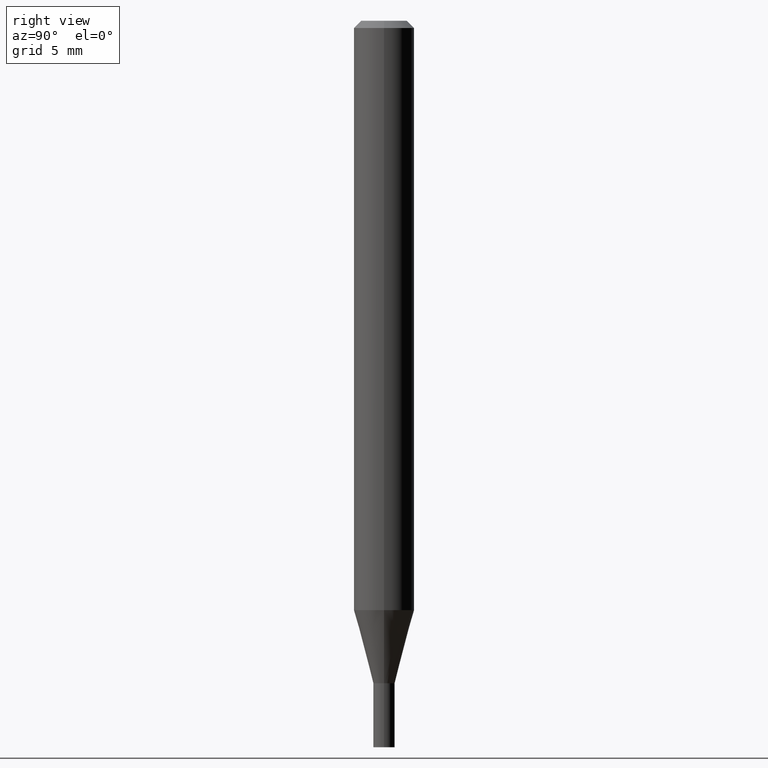
[diagram: clean part render]
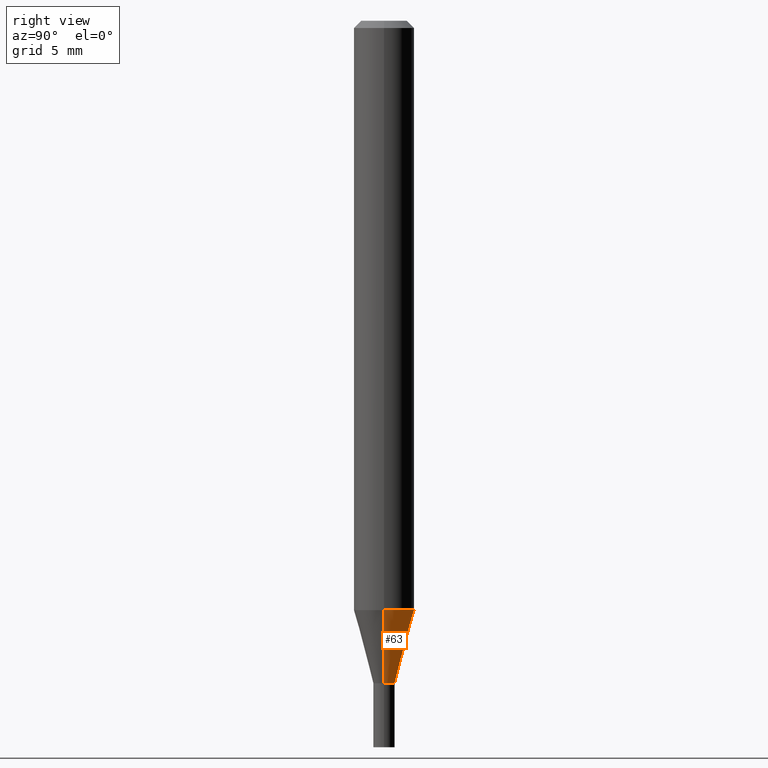
[diagram: same view with one face highlighted and labeled with its STEP entity id]
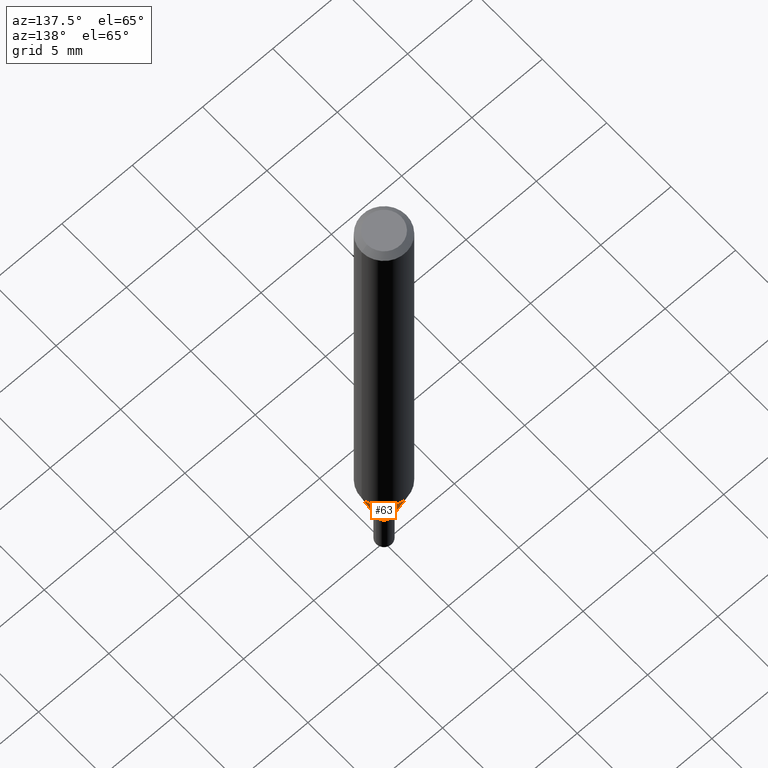
[diagram: same view with one face highlighted and labeled with its STEP entity id]
A machine part, right view. The second image highlights one B-rep face of the part: STEP entity #63.
A second angle (auxiliary view) of the same face is appended — the face is thin or edge-on in the first view.
In plain terms, the highlighted conical surface has half-angle 15 deg.
Its self-contained STEP definition (entity closure, byte-faithful):
#7 = DIRECTION ( 'NONE',  ( -2.445468806185136597E-29, 3.491481338843145583E-15, 1.000000000000000000 ) ) ;
#14 = VERTEX_POINT ( 'NONE', #279 ) ;
#34 = VERTEX_POINT ( 'NONE', #127 ) ;
#41 = AXIS2_PLACEMENT_3D ( 'NONE', #372, #47, #416 ) ;
#43 = CARTESIAN_POINT ( 'NONE',  ( 3.345401326861266963E-29, -4.776346471537423880E-15, -1.368000000000000105 ) ) ;
#47 = DIRECTION ( 'NONE',  ( -2.445468806185136597E-29, 3.491481338843145583E-15, 1.000000000000000000 ) ) ;
#50 = ORIENTED_EDGE ( 'NONE', *, *, #415, .F. ) ;
#63 = ADVANCED_FACE ( 'NONE', ( #384 ), #289, .T. ) ;
#64 = CARTESIAN_POINT ( 'NONE',  ( 3.345401326861266963E-29, -4.776346471537423880E-15, -1.368000000000000105 ) ) ;
#67 = DIRECTION ( 'NONE',  ( 1.000000000000000000, -6.982962677686268288E-15, 0.000000000000000000 ) ) ;
#77 = CARTESIAN_POINT ( 'NONE',  ( -0.02199999999999964831, -4.212276854236394930E-15, -1.368000000000000105 ) ) ;
#83 = CARTESIAN_POINT ( 'NONE',  ( -0.02199999999999964831, -4.620027069670204066E-15, -1.368000000000000105 ) ) ;
#87 = DIRECTION ( 'NONE',  ( 0.2588190451025207395, 1.565188264969626109E-15, 0.9659258262890682012 ) ) ;
#127 = CARTESIAN_POINT ( 'NONE',  ( -0.06249999999999999306, -3.804526638802586582E-15, -1.216851942293459166 ) ) ;
#134 = CIRCLE ( 'NONE', #286, 0.02199999999999964831 ) ;
#149 = ORIENTED_EDGE ( 'NONE', *, *, #357, .T. ) ;
#174 = EDGE_LOOP ( 'NONE', ( #149, #180, #50, #414 ) ) ;
#180 = ORIENTED_EDGE ( 'NONE', *, *, #259, .T. ) ;
#227 = VERTEX_POINT ( 'NONE', #239 ) ;
#232 = DIRECTION ( 'NONE',  ( -0.2588190451025207395, 5.211531920934546309E-15, 0.9659258262890682012 ) ) ;
#239 = CARTESIAN_POINT ( 'NONE',  ( 0.06249999999999999306, -4.685051016008040868E-15, -1.216851942293459166 ) ) ;
#248 = EDGE_CURVE ( 'NONE', #14, #227, #410, .T. ) ;
#250 = DIRECTION ( 'NONE',  ( -2.445468806185136597E-29, 3.491481338843145583E-15, 1.000000000000000000 ) ) ;
#259 = EDGE_CURVE ( 'NONE', #447, #34, #367, .T. ) ;
#266 = DIRECTION ( 'NONE',  ( 1.000000000000000000, -6.982962677686268288E-15, 0.000000000000000000 ) ) ;
#279 = CARTESIAN_POINT ( 'NONE',  ( 0.02199999999999964831, -4.929971650446518560E-15, -1.368000000000000105 ) ) ;
#286 = AXIS2_PLACEMENT_3D ( 'NONE', #43, #7, #266 ) ;
#289 = CONICAL_SURFACE ( 'NONE', #409, 0.02199999999999964831, 0.2617993877991494633 ) ;
#324 = VECTOR ( 'NONE', #87, 39.37007874015748854 ) ;
#357 = EDGE_CURVE ( 'NONE', #14, #447, #134, .T. ) ;
#367 = LINE ( 'NONE', #83, #431 ) ;
#372 = CARTESIAN_POINT ( 'NONE',  ( 2.975773466624450297E-29, -4.248615848652648409E-15, -1.216851942293459166 ) ) ;
#378 = CARTESIAN_POINT ( 'NONE',  ( 0.02199999999999964831, -4.929971650446518560E-15, -1.368000000000000105 ) ) ;
#384 = FACE_OUTER_BOUND ( 'NONE', #174, .T. ) ;
#409 = AXIS2_PLACEMENT_3D ( 'NONE', #64, #250, #67 ) ;
#410 = LINE ( 'NONE', #378, #324 ) ;
#414 = ORIENTED_EDGE ( 'NONE', *, *, #248, .F. ) ;
#415 = EDGE_CURVE ( 'NONE', #227, #34, #456, .T. ) ;
#416 = DIRECTION ( 'NONE',  ( 1.000000000000000000, -6.982962677686262766E-15, 0.000000000000000000 ) ) ;
#431 = VECTOR ( 'NONE', #232, 39.37007874015748854 ) ;
#447 = VERTEX_POINT ( 'NONE', #77 ) ;
#456 = CIRCLE ( 'NONE', #41, 0.06250000000000000000 ) ;